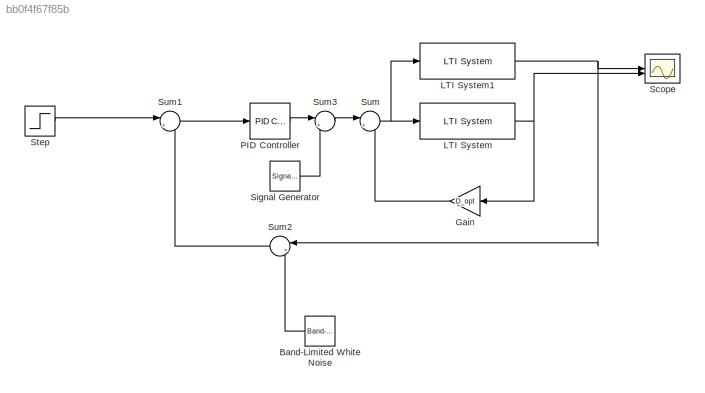
MODEL slx_bb0f4f67f85b
KIND model
CONFIG AbsTol = auto
CONFIG EnableMultiTasking = off
CONFIG FixedStep = auto
CONFIG MaxStep = auto
CONFIG MinStep = auto
CONFIG RelTol = 1e-3
CONFIG SampleTimeConstraint = Unconstrained
CONFIG SolverName = VariableStepAuto
CONFIG StartTime = 0.0
CONFIG StopTime = 50'
BLOCK [Reference] Band-Limited White Noise  REF=simulink/Sources/Band-Limited
White Noise
  NameLocation = top
  SourceBlock = simulink/Sources/Band-Limited\nWhite Noise
  SourceType = Band-Limited White Noise.
BLOCK [Gain] Gain
  Gain = D_opt
  NameLocation = top
BLOCK [Reference] LTI System  REF=cstblocks/LTI System
  SourceBlock = cstblocks/LTI System
  SourceType = LTI Block
BLOCK [Reference] LTI System1  REF=cstblocks/LTI System
  SourceBlock = cstblocks/LTI System
  SourceType = LTI Block
BLOCK [Reference] PID Controller  REF=slpidlib/PID Controller
  LibrarySourceBlock = simulink/Continuous/PID Controller
  NameLocation = top
  SourceBlock = slpidlib/PID Controller
  SourceType = PID 1dof
BLOCK [Scope] Scope
  ActiveDisplayYMaximum = 2.39376
  ActiveDisplayYMinimum = -1.15206
  ContainerLayout = {"WindowBounds":[853,1477,340,651]}
  Floating = off
  GraphicalSettings = {"GraphicalSettings":{"LegacySettings":true,"Style":{"Style":{"AxesColor":"[1 1 1]","BackgroundColor":"[0.67843137254902 0.92156862745098 1]","ChannelNames":["",""],"ColorOrder":"[0 0.447058823529412 0.741176470588235;0.850980392156863 0.325490196078431 0.0980392156862745;0.929411764705882 0.694117647058824 0.125490196078431;0.494117647058824 0.184313725490196 0.556862745098039;0.466666666666667 0...<+520ch>
  LayoutDimensionsString = [2 1]
  MultipleDisplayCache = [{"MaxYLimMag":2.39376,"MaxYLimReal":2.39376,"MinYLimMag":0,"MinYLimReal":-1.15206,"PlotAsMagnitudePhase":false,"ShowGrid":true,"ShowLegend":false,"Title":"%<SignalLabel>","YLabel":""},{"MaxYLimMag":1.40541,"MaxYLimReal":12.67701,"MinYLimMag":0,"MinYLimReal":-12.05127,"PlotAsMagnitudePhase":false,"ShowGrid":true,"ShowLegend":false,"Title":"%<SignalLabel>","YLabel":""}]
  NumInputPorts = 2
  Visible = on
  WasSavedAsWebScope = on
  WindowPosition = [1 49 1920 950]
BLOCK [SignalGenerator] Signal Generator
  Amplitude = 0.3
  Frequency = 6
  Units = rad/sec
  WaveForm = square
BLOCK [Step] Step
  SampleTime = 0
BLOCK [Sum] Sum
  Inputs = |+-
BLOCK [Sum] Sum1
  Inputs = |+-
BLOCK [Sum] Sum2
  Inputs = |++
  NameLocation = top
BLOCK [Sum] Sum3
  Inputs = |++
LINE Band-Limited White Noise:1 -> Sum2:2
LINE Gain:1 -> Sum:2
NET LTI System1:1 -> Scope:1, Sum2:1
NET LTI System:1 -> Gain:1, Scope:2
LINE PID Controller:1 -> Sum3:1
LINE Signal Generator:1 -> Sum3:2
LINE Step:1 -> Sum1:1
LINE Sum1:1 -> PID Controller:1
LINE Sum2:1 -> Sum1:2
LINE Sum3:1 -> Sum:1
NET Sum:1 -> LTI System1:1, LTI System:1
note: NET lines group one-source signal fan-out (src -> all destinations, sorted); 1:1 wires keep LINE
